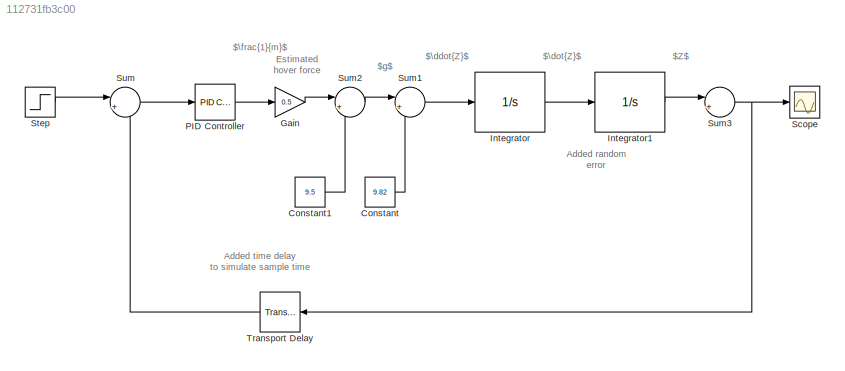
MODEL slx_112731fb3c00
KIND model
CONFIG AbsTol = auto
CONFIG EnableMultiTasking = off
CONFIG FixedStep = auto
CONFIG MaxStep = auto
CONFIG MinStep = auto
CONFIG RelTol = 1e-3
CONFIG SampleTimeConstraint = Unconstrained
CONFIG SolverName = VariableStepAuto
CONFIG StartTime = 0.0
CONFIG StopTime = 250
BLOCK [Constant] Constant
  Value = 9.82
BLOCK [Constant] Constant1
  Value = 9.5
BLOCK [Gain] Gain
  Gain = 0.5
BLOCK [Integrator] Integrator
BLOCK [Integrator] Integrator1
  LimitOutput = on
  LowerSaturationLimit = 0
BLOCK [Reference] PID Controller  REF=slpidlib/PID Controller
  LibrarySourceBlock = simulink/Continuous/PID Controller
  SourceBlock = slpidlib/PID Controller
  SourceType = PID 1dof
BLOCK [Scope] Scope
  Floating = off
  NumInputPorts = 1
  ScopeSpecificationString = Simulink.scopes.TimeScopeBlockCfg('CurrentConfiguration', extmgr.ConfigurationSet(extmgr.Configuration('Core','General UI',true),extmgr.Configuration('Core','Source UI',true),extmgr.Configuration('Sources','WiredSimulink',true),extmgr.Configuration('Visuals','Time Domain',true,'SerializedDisplays',{struct('MinYLimReal','-0.16035','MaxYLimReal','1.44319','YLabelReal','','MinYLimMag','0.00000','MaxY...<+1422ch>
BLOCK [Step] Step
  SampleTime = 0
BLOCK [Sum] Sum
  Inputs = |+-
BLOCK [Sum] Sum1
  Inputs = |+-
BLOCK [Sum] Sum2
  Inputs = |++
BLOCK [Sum] Sum3
  Inputs = |++
BLOCK [TransportDelay] Transport Delay
  DelayTime = 0.0000025
ANNOTATION (root): $Z$
ANNOTATION (root): $\ddot{Z}$
ANNOTATION (root): $\dot{Z}$
ANNOTATION (root): $\frac{1}{m}$
ANNOTATION (root): $g$
ANNOTATION (root): Added random error
ANNOTATION (root): Added time delay to simulate sample time
ANNOTATION (root): Estimated hover force
LINE Constant1:1 -> Sum2:2
LINE Constant:1 -> Sum1:2
LINE Gain:1 -> Sum2:1
LINE Integrator1:1 -> Sum3:1
LINE Integrator:1 -> Integrator1:1
LINE PID Controller:1 -> Gain:1
LINE Step:1 -> Sum:1
LINE Sum1:1 -> Integrator:1
LINE Sum2:1 -> Sum1:1
NET Sum3:1 -> Scope:1, Transport Delay:1
LINE Sum:1 -> PID Controller:1
LINE Transport Delay:1 -> Sum:2
note: NET lines group one-source signal fan-out (src -> all destinations, sorted); 1:1 wires keep LINE
